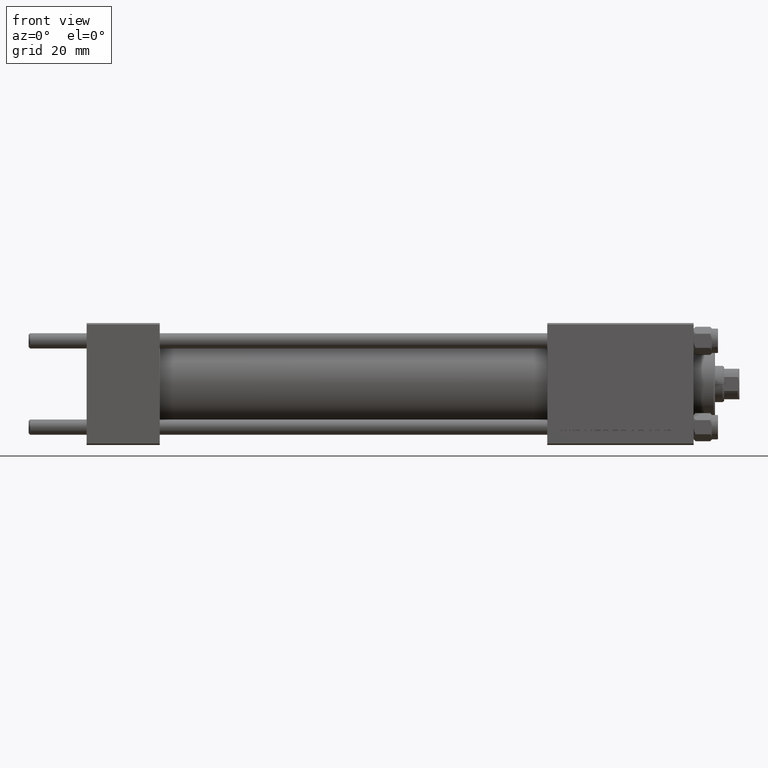
[diagram: clean part render]
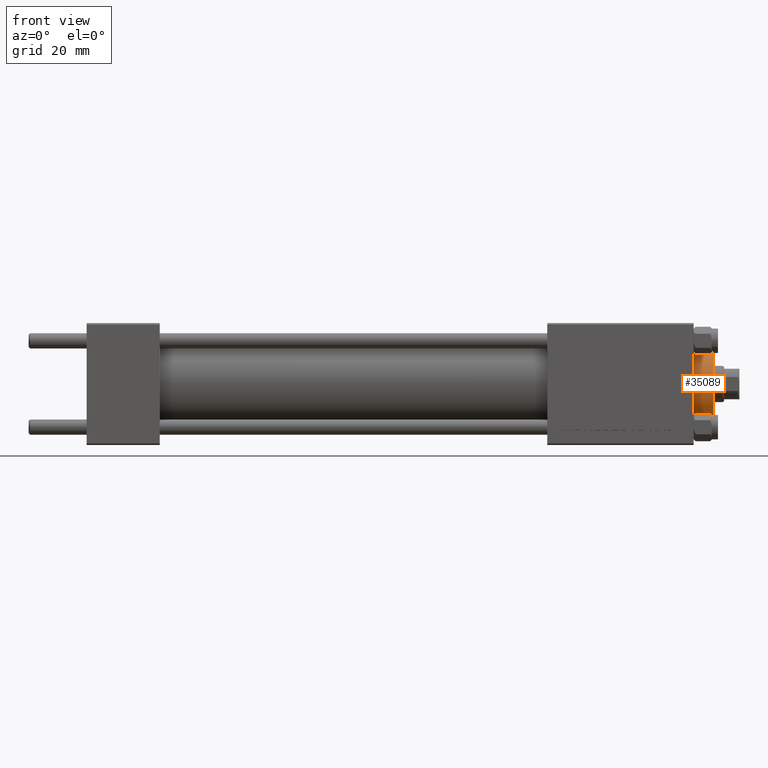
[diagram: same view with one face highlighted and labeled with its STEP entity id]
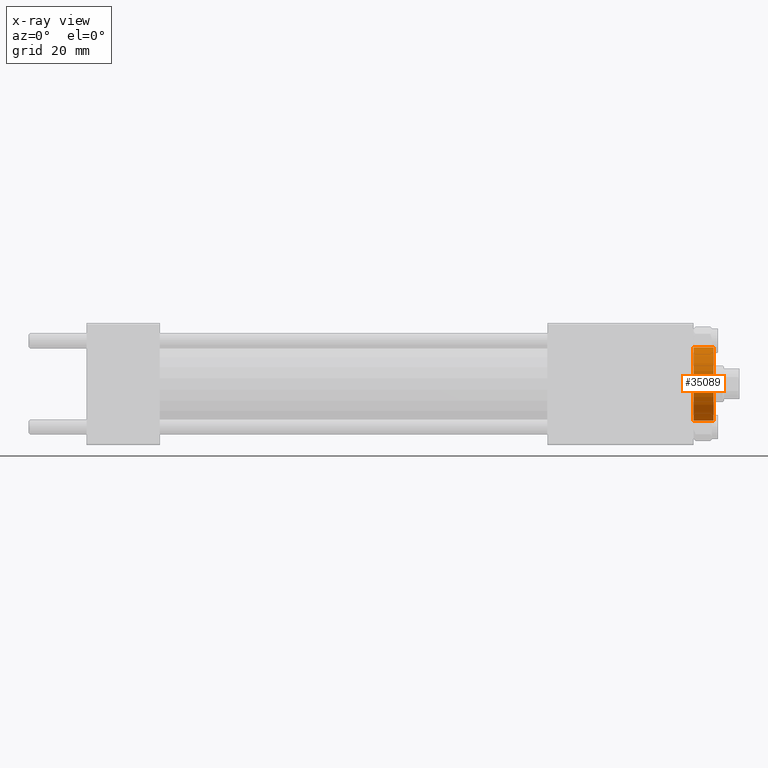
[diagram: x-ray of the same camera — body ghosted, the highlighted face saturated]
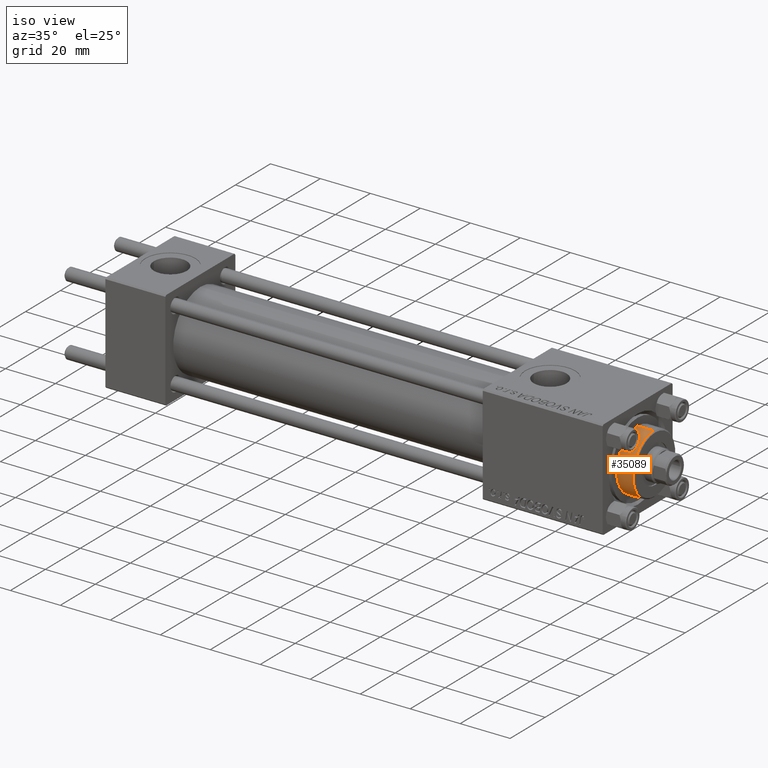
[diagram: same view with one face highlighted and labeled with its STEP entity id]
A machine part, front view. The second image highlights one B-rep face of the part: STEP entity #35089.
The next image is the same camera in x-ray: the body ghosted, the highlighted face saturated — about 0% of this face is hidden behind the body in this view.
A second angle (iso view) of the same face is appended — the face is thin or edge-on in the first view.
In plain terms, the highlighted cylindrical surface (partial cylindrical patch) has radius 12 mm, axis along (-1, -0, 0).
Its self-contained STEP definition (entity closure, byte-faithful):
#9 = CARTESIAN_POINT ( 'NONE',  ( 0.000000000000000000, 0.000000000000000000, 35.19999999999999574 ) ) ;
#1141 = FACE_OUTER_BOUND ( 'NONE', #33244, .T. ) ;
#1630 = AXIS2_PLACEMENT_3D ( 'NONE', #46362, #35529, #28226 ) ;
#1690 = VERTEX_POINT ( 'NONE', #25667 ) ;
#4604 = VECTOR ( 'NONE', #23133, 1000.000000000000000 ) ;
#5165 = CYLINDRICAL_SURFACE ( 'NONE', #20380, 12.00000000000000178 ) ;
#5568 = VERTEX_POINT ( 'NONE', #30647 ) ;
#7799 = DIRECTION ( 'NONE',  ( 1.000000000000000000, 0.000000000000000000, 0.000000000000000000 ) ) ;
#7945 = DIRECTION ( 'NONE',  ( -1.000000000000000000, 0.000000000000000000, 0.000000000000000000 ) ) ;
#9811 = EDGE_CURVE ( 'NONE', #1690, #41262, #43201, .T. ) ;
#12448 = VERTEX_POINT ( 'NONE', #30210 ) ;
#13254 = ORIENTED_EDGE ( 'NONE', *, *, #15580, .F. ) ;
#14304 = EDGE_CURVE ( 'NONE', #5568, #1690, #14331, .T. ) ;
#14331 = CIRCLE ( 'NONE', #17543, 12.00000000000000178 ) ;
#15352 = DIRECTION ( 'NONE',  ( 0.000000000000000000, 0.000000000000000000, -1.000000000000000000 ) ) ;
#15580 = EDGE_CURVE ( 'NONE', #5568, #12448, #19597, .T. ) ;
#15662 = ORIENTED_EDGE ( 'NONE', *, *, #9811, .T. ) ;
#16492 = CARTESIAN_POINT ( 'NONE',  ( 0.000000000000000000, 0.000000000000000000, 35.70000000000000284 ) ) ;
#17543 = AXIS2_PLACEMENT_3D ( 'NONE', #9, #15352, #7799 ) ;
#18454 = ORIENTED_EDGE ( 'NONE', *, *, #14304, .T. ) ;
#19597 = LINE ( 'NONE', #43259, #4604 ) ;
#20380 = AXIS2_PLACEMENT_3D ( 'NONE', #16492, #46222, #7945 ) ;
#21260 = ORIENTED_EDGE ( 'NONE', *, *, #27074, .T. ) ;
#23133 = DIRECTION ( 'NONE',  ( -0.000000000000000000, -0.000000000000000000, -1.000000000000000000 ) ) ;
#23567 = CARTESIAN_POINT ( 'NONE',  ( -12.00000000000000178, 0.000000000000000000, 35.70000000000000284 ) ) ;
#23820 = DIRECTION ( 'NONE',  ( -0.000000000000000000, -0.000000000000000000, -1.000000000000000000 ) ) ;
#24457 = CARTESIAN_POINT ( 'NONE',  ( -12.00000000000000178, 0.000000000000000000, 28.69999999999999929 ) ) ;
#25667 = CARTESIAN_POINT ( 'NONE',  ( -12.00000000000000178, 0.000000000000000000, 35.19999999999999574 ) ) ;
#27074 = EDGE_CURVE ( 'NONE', #41262, #12448, #34588, .T. ) ;
#28226 = DIRECTION ( 'NONE',  ( 1.000000000000000000, 0.000000000000000000, 0.000000000000000000 ) ) ;
#30210 = CARTESIAN_POINT ( 'NONE',  ( 12.00000000000000178, 1.469576158976824144E-15, 28.69999999999999929 ) ) ;
#30647 = CARTESIAN_POINT ( 'NONE',  ( 12.00000000000000178, 1.469576158976824144E-15, 35.19999999999999574 ) ) ;
#33244 = EDGE_LOOP ( 'NONE', ( #13254, #18454, #15662, #21260 ) ) ;
#34588 = CIRCLE ( 'NONE', #1630, 12.00000000000000178 ) ;
#35089 = ADVANCED_FACE ( 'NONE', ( #1141 ), #5165, .T. ) ;
#35529 = DIRECTION ( 'NONE',  ( 0.000000000000000000, 0.000000000000000000, 1.000000000000000000 ) ) ;
#41262 = VERTEX_POINT ( 'NONE', #24457 ) ;
#43201 = LINE ( 'NONE', #23567, #43924 ) ;
#43259 = CARTESIAN_POINT ( 'NONE',  ( 12.00000000000000178, 1.469576158976824144E-15, 35.70000000000000284 ) ) ;
#43924 = VECTOR ( 'NONE', #23820, 1000.000000000000000 ) ;
#46222 = DIRECTION ( 'NONE',  ( -0.000000000000000000, -0.000000000000000000, -1.000000000000000000 ) ) ;
#46362 = CARTESIAN_POINT ( 'NONE',  ( 0.000000000000000000, 0.000000000000000000, 28.69999999999999929 ) ) ;